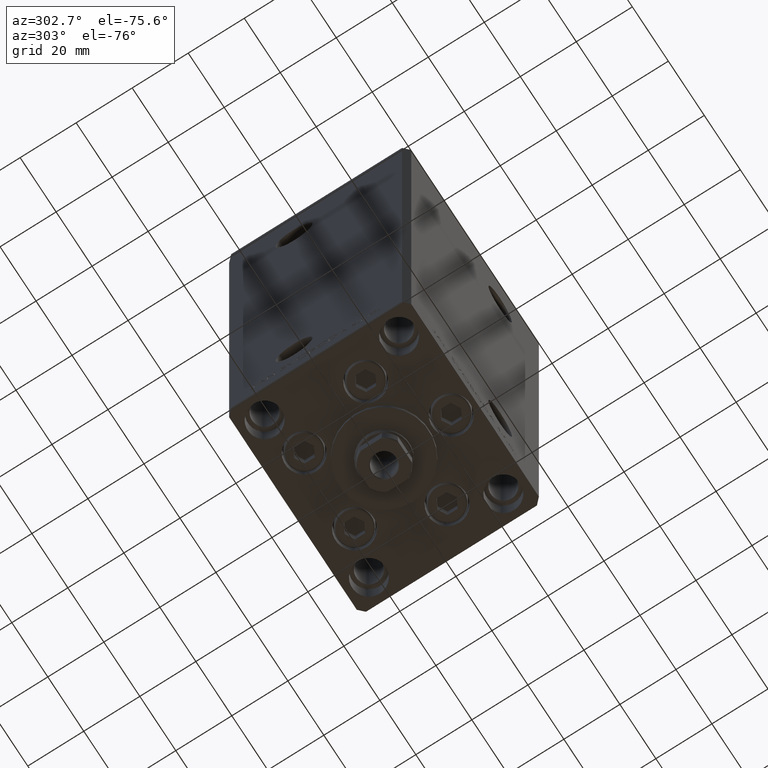
[diagram: clean part render]
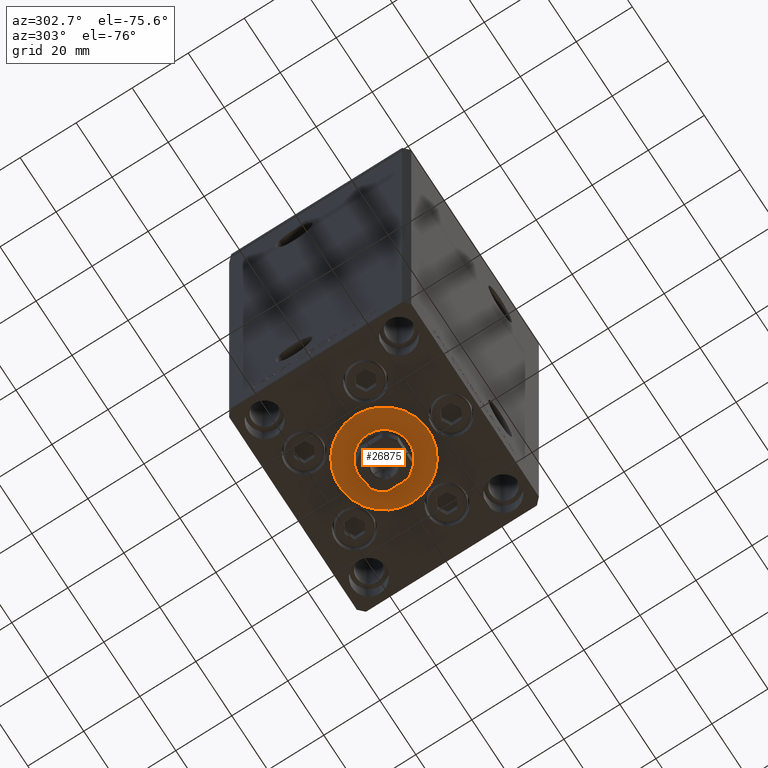
[diagram: same view with one face highlighted and labeled with its STEP entity id]
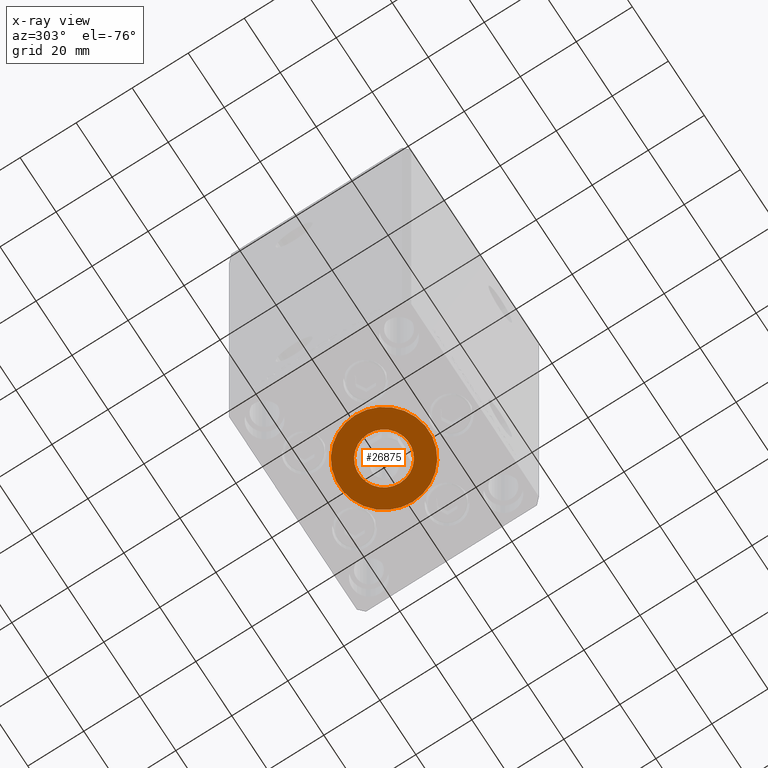
[diagram: x-ray of the same camera — body ghosted, the highlighted face saturated]
A machine part, auxiliary view. The second image highlights one B-rep face of the part: STEP entity #26875.
The next image is the same camera in x-ray: the body ghosted, the highlighted face saturated — about 0% of this face is hidden behind the body in this view.
In plain terms, the highlighted planar face has unit normal (0, 0, -1).
Its self-contained STEP definition (entity closure, byte-faithful):
#2491 = FACE_BOUND ( 'NONE', #11549, .T. ) ;
#3554 = DIRECTION ( 'NONE',  ( 1.000000000000000000, 0.000000000000000000, 0.000000000000000000 ) ) ;
#6256 = CARTESIAN_POINT ( 'NONE',  ( 0.000000000000000000, -6.938893903907228378E-15, 2.000000000000000000 ) ) ;
#7331 = DIRECTION ( 'NONE',  ( 0.000000000000000000, 0.000000000000000000, 1.000000000000000000 ) ) ;
#8856 = CARTESIAN_POINT ( 'NONE',  ( 0.000000000000000000, -6.938893903907228378E-15, 2.000000000000000000 ) ) ;
#9456 = EDGE_CURVE ( 'NONE', #49380, #44913, #42141, .T. ) ;
#9780 = PLANE ( 'NONE',  #43273 ) ;
#10371 = EDGE_CURVE ( 'NONE', #44399, #21092, #19723, .T. ) ;
#11549 = EDGE_LOOP ( 'NONE', ( #33456, #34282 ) ) ;
#12618 = DIRECTION ( 'NONE',  ( 0.000000000000000000, 0.000000000000000000, 1.000000000000000000 ) ) ;
#13671 = DIRECTION ( 'NONE',  ( 0.000000000000000000, 0.000000000000000000, 1.000000000000000000 ) ) ;
#13800 = DIRECTION ( 'NONE',  ( 1.000000000000000000, 0.000000000000000000, -0.000000000000000000 ) ) ;
#15841 = CARTESIAN_POINT ( 'NONE',  ( -16.00000000000000355, -6.938893903907228378E-15, 2.000000000000000000 ) ) ;
#16289 = EDGE_LOOP ( 'NONE', ( #47906, #26368 ) ) ;
#17324 = AXIS2_PLACEMENT_3D ( 'NONE', #48073, #13671, #44309 ) ;
#19723 = CIRCLE ( 'NONE', #17324, 16.00000000000000355 ) ;
#21092 = VERTEX_POINT ( 'NONE', #49568 ) ;
#21703 = CARTESIAN_POINT ( 'NONE',  ( -9.000000000000000000, -5.836711784674610467E-15, 2.000000000000000000 ) ) ;
#22530 = EDGE_CURVE ( 'NONE', #21092, #44399, #45686, .T. ) ;
#25331 = FACE_OUTER_BOUND ( 'NONE', #16289, .T. ) ;
#26368 = ORIENTED_EDGE ( 'NONE', *, *, #22530, .T. ) ;
#26620 = CARTESIAN_POINT ( 'NONE',  ( 9.000000000000000000, -6.938893903907228378E-15, 2.000000000000000000 ) ) ;
#26875 = ADVANCED_FACE ( 'NONE', ( #2491, #25331 ), #9780, .T. ) ;
#29280 = AXIS2_PLACEMENT_3D ( 'NONE', #31006, #35016, #31738 ) ;
#31006 = CARTESIAN_POINT ( 'NONE',  ( 0.000000000000000000, -6.938893903907228378E-15, 2.000000000000000000 ) ) ;
#31738 = DIRECTION ( 'NONE',  ( 1.000000000000000000, 0.000000000000000000, 0.000000000000000000 ) ) ;
#33456 = ORIENTED_EDGE ( 'NONE', *, *, #9456, .F. ) ;
#34282 = ORIENTED_EDGE ( 'NONE', *, *, #39257, .F. ) ;
#35016 = DIRECTION ( 'NONE',  ( 0.000000000000000000, 0.000000000000000000, 1.000000000000000000 ) ) ;
#35889 = CIRCLE ( 'NONE', #47163, 9.000000000000000000 ) ;
#39257 = EDGE_CURVE ( 'NONE', #44913, #49380, #35889, .T. ) ;
#39491 = DIRECTION ( 'NONE',  ( 1.000000000000000000, 0.000000000000000000, 0.000000000000000000 ) ) ;
#41738 = CARTESIAN_POINT ( 'NONE',  ( 0.000000000000000000, -6.938893903907228378E-15, 2.000000000000000000 ) ) ;
#42141 = CIRCLE ( 'NONE', #29280, 9.000000000000000000 ) ;
#43273 = AXIS2_PLACEMENT_3D ( 'NONE', #6256, #48452, #13800 ) ;
#44309 = DIRECTION ( 'NONE',  ( 1.000000000000000000, 0.000000000000000000, 0.000000000000000000 ) ) ;
#44399 = VERTEX_POINT ( 'NONE', #15841 ) ;
#44913 = VERTEX_POINT ( 'NONE', #21703 ) ;
#45686 = CIRCLE ( 'NONE', #47285, 16.00000000000000355 ) ;
#47163 = AXIS2_PLACEMENT_3D ( 'NONE', #8856, #12618, #39491 ) ;
#47285 = AXIS2_PLACEMENT_3D ( 'NONE', #41738, #7331, #3554 ) ;
#47906 = ORIENTED_EDGE ( 'NONE', *, *, #10371, .T. ) ;
#48073 = CARTESIAN_POINT ( 'NONE',  ( 0.000000000000000000, -6.938893903907228378E-15, 2.000000000000000000 ) ) ;
#48452 = DIRECTION ( 'NONE',  ( 0.000000000000000000, 0.000000000000000000, 1.000000000000000000 ) ) ;
#49380 = VERTEX_POINT ( 'NONE', #26620 ) ;
#49568 = CARTESIAN_POINT ( 'NONE',  ( 16.00000000000000355, -4.979459025271462852E-15, 2.000000000000000000 ) ) ;